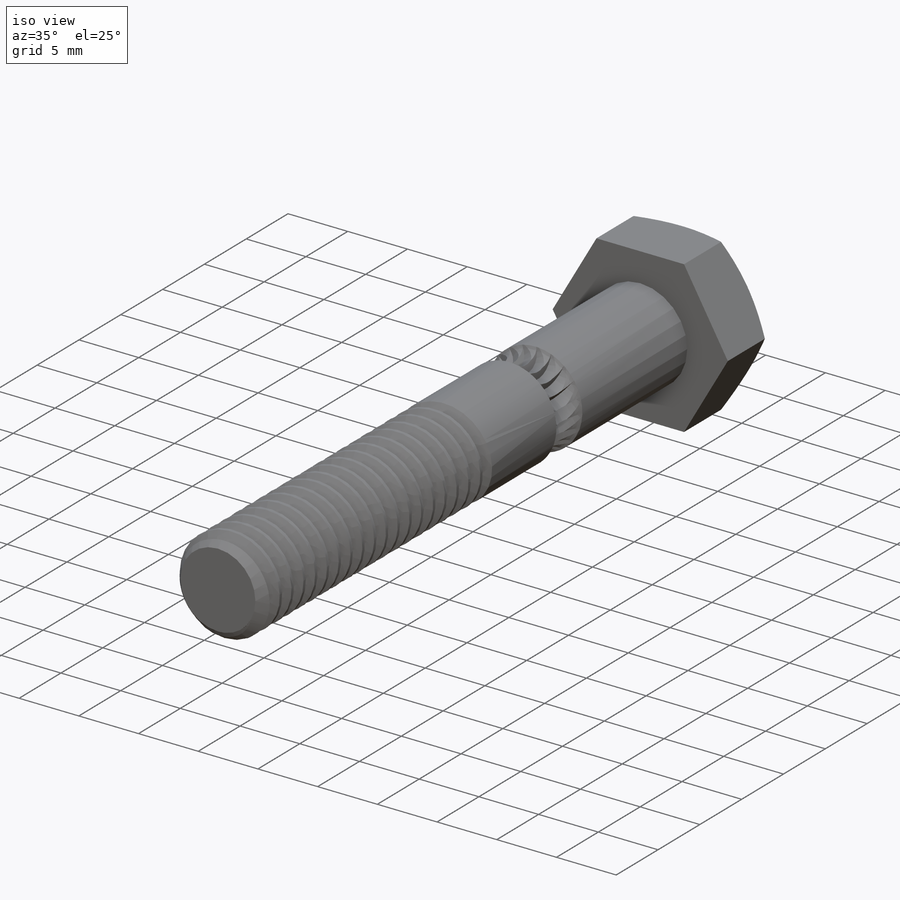
[diagram: iso view]
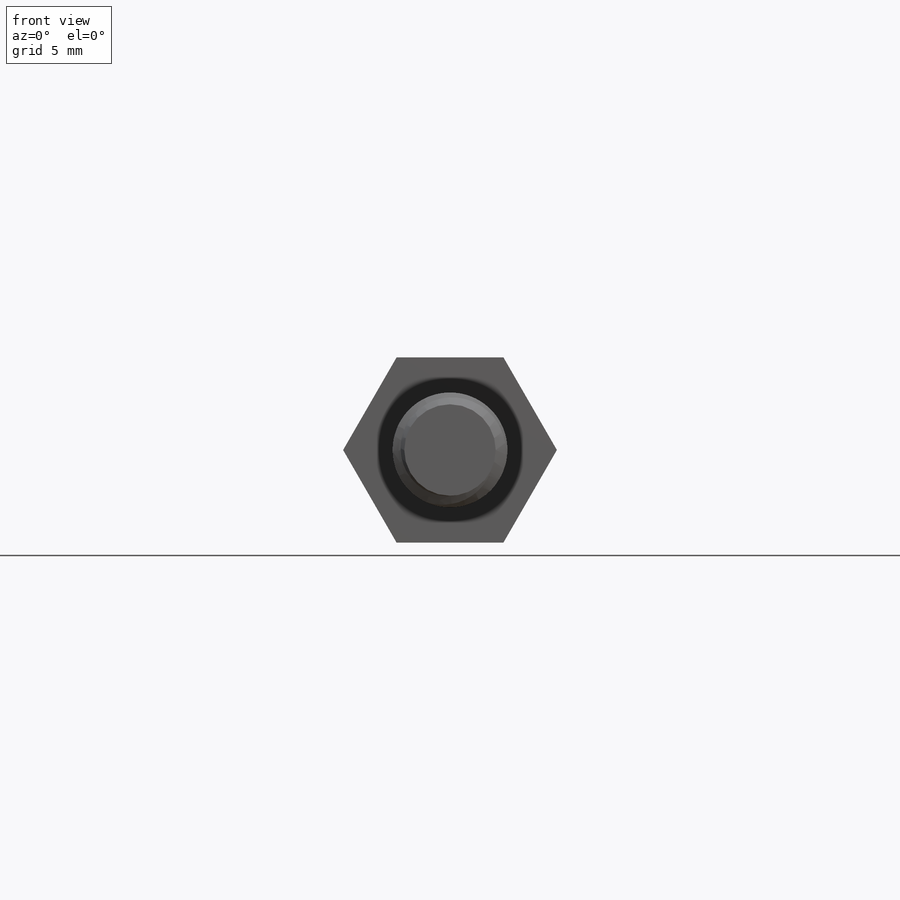
[diagram: front view]
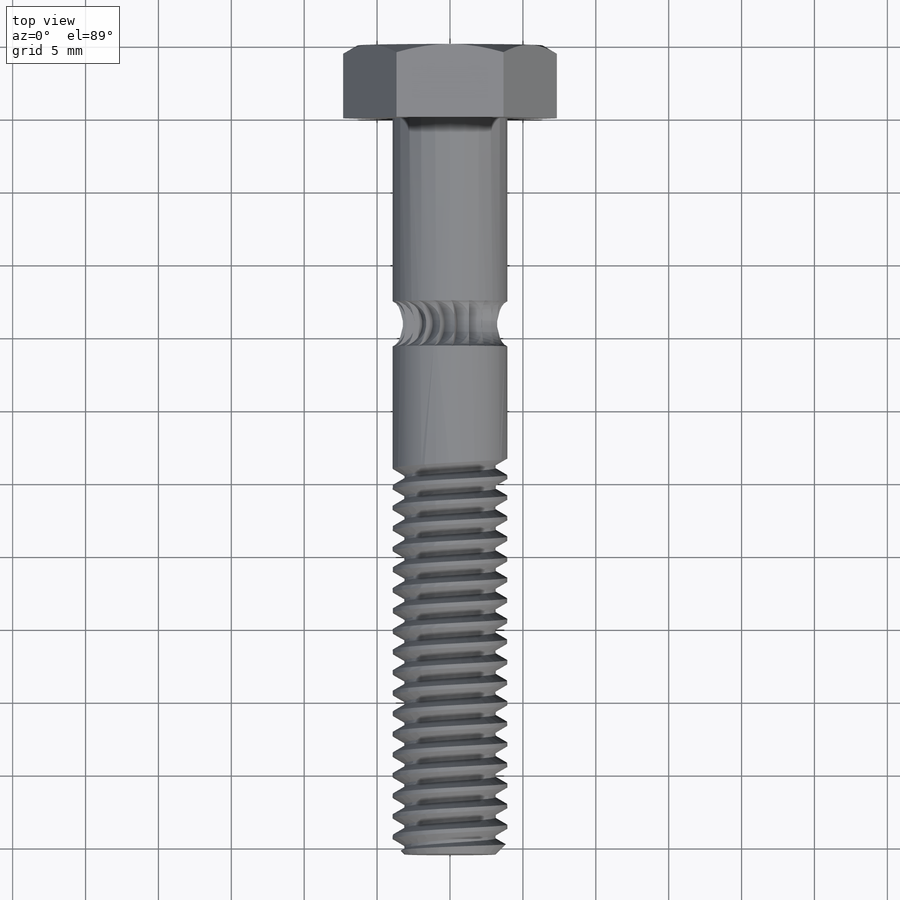
[diagram: top view]
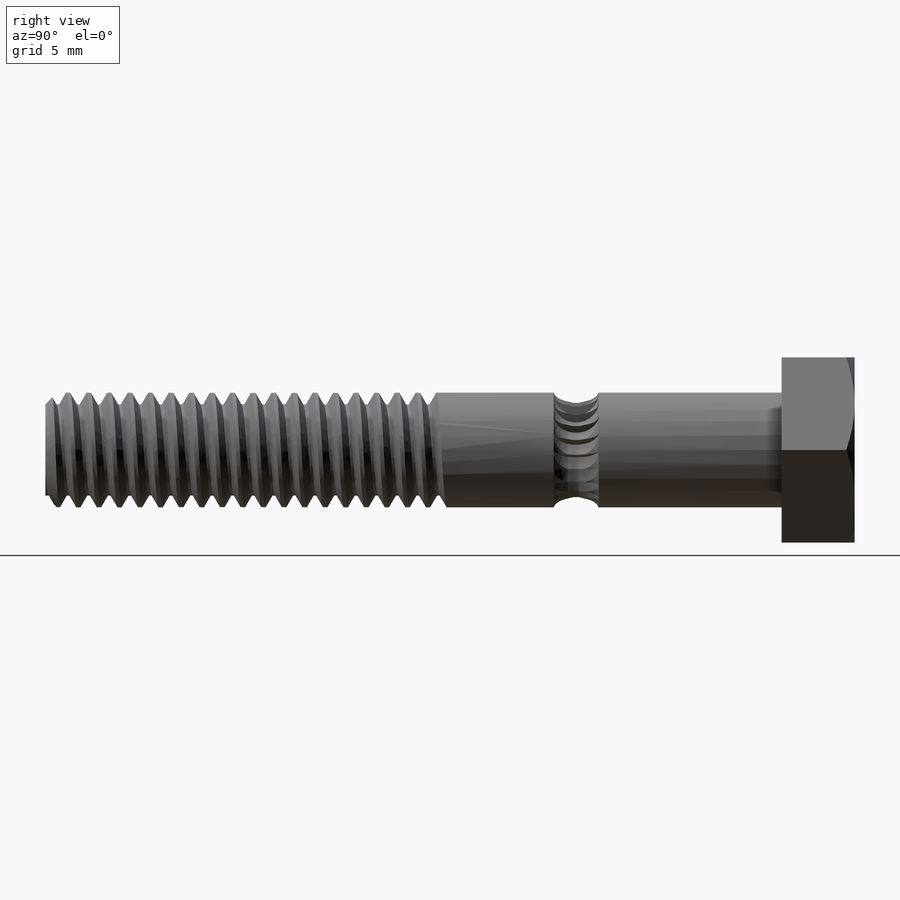
[diagram: right view]
SOLIDWORKS PART (.sldprt)
format: sldprt  version: not decoded by parser v0  size: 813,056 bytes
history: native  units: mm
features: sketch x9, plane x4, extrude x2, sweep x2, cut_extrude x2, material x1, chamfer x1, helix x1, pattern_circular x1 (+12 scaffold rows collapsed)
feature tree (35):
  scaffold x12  (default folders/planes/origin — collapsed)
  material  "Material <not specified>"
  sketch  "Sketch1"  dims[D1=7.874mm]
  extrude  "Bolt Body"  Depth=50.5mm
  chamfer  "Bolt Tip Chamfer"  Distance=0.8mm Angle=45deg
  sketch  "Sketch7"  dims[c1.D1=~0.940602mm c2.D1=60.0deg c2.D2=~0.940602mm c3.D2=60.0deg c3.D3=0.8mm c3.D4=~1.128889mm]
  sketch  "Sketch8"
  helix  "Helix/Spiral1"  Pitch=28.222222mm
  sweep  "Cut-Sweep1"
  sketch  "Sketch3"  dims[D1=12.0mm D2=12.7mm]
  extrude  "Bolt Head"  Depth=5mm
  sketch  "Sketch6"  dims[D1=12.7mm]
  cut_extrude  "Head Circle"  Depth=10mm
  plane  "Waist Cut Plane"  Offset=3.05mm
  sketch  "Waist Cut Contour"  dims[D2=3.175mm D1=14.1mm D3=2.85mm]
  plane  "Waist Revolve Plane"
  sketch  "Waist Cut Path"
  sweep  "Waist Cut"
  plane  "Tooth Plane"  Offset=1.31mm
  sketch  "Tooth Cut Contour"  dims[c1.D1=~4.881809mm c1.D3=3.175mm c2.D1=14.1mm c2.D2=4.0mm c3.D1=14.1mm]
  cut_extrude  "Tooth Cut"  [1 undecoded]
  pattern_circular  "Tooth X20"  Count=20 Angle=18deg
  sketch  "Drive Diameter Metric"  dims[D1=~6.478057mm]
  plane  "Top Zero Plane"
decode coverage: 13 of 18 modeling features carry decoded parameters
note: ~ marks probable driven/reference dimensions
note: 1 parameter value undecoded
note: suppression state not decoded; provenance and decode notes live in map.json
